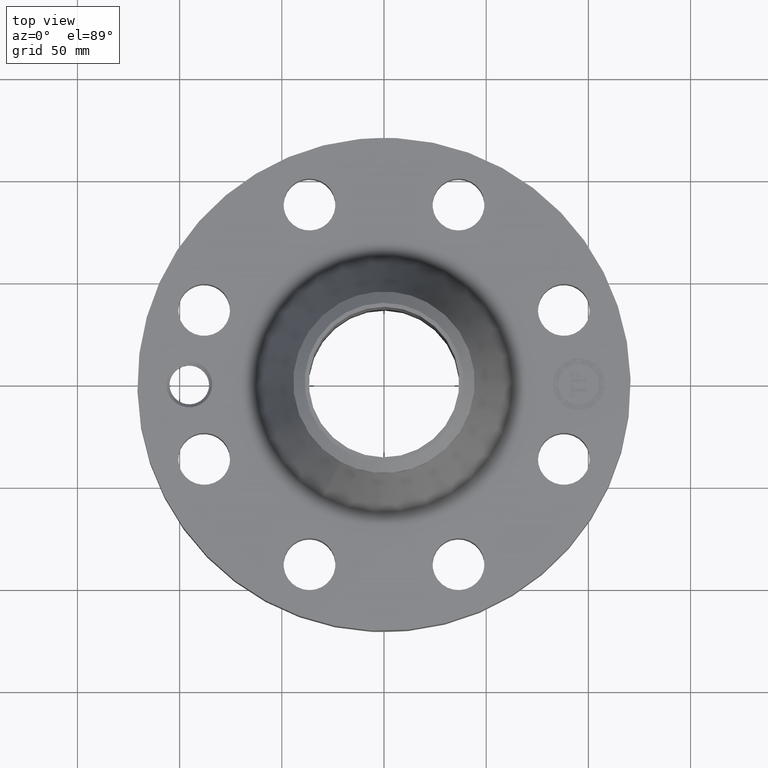
[diagram: clean part render]
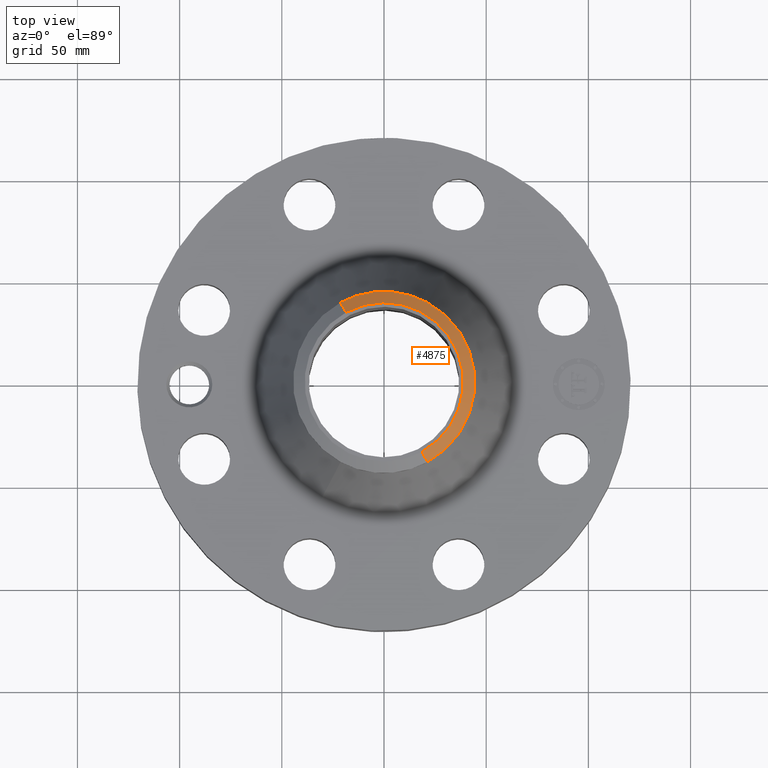
[diagram: same view with one face highlighted and labeled with its STEP entity id]
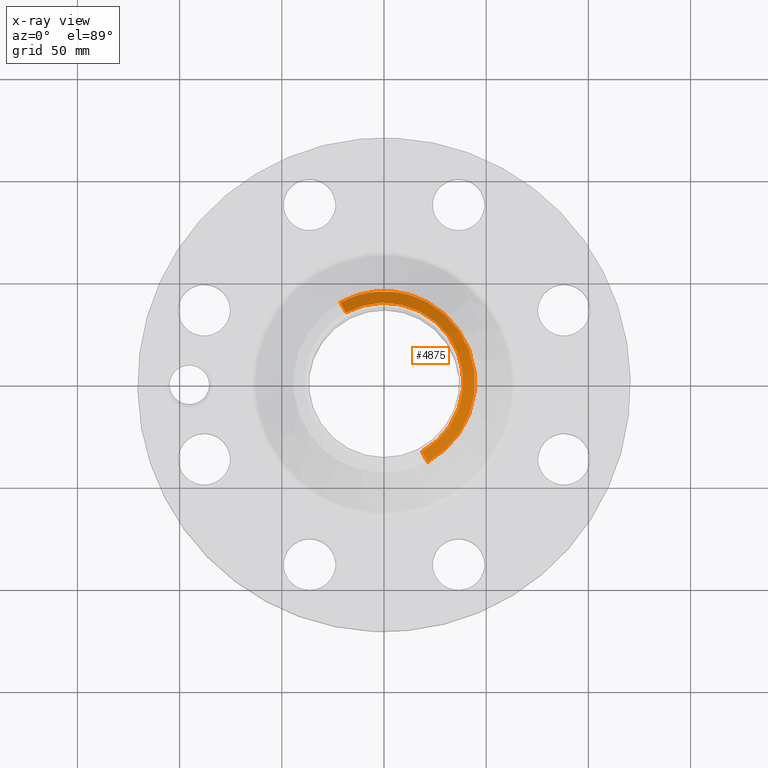
[diagram: x-ray of the same camera — body ghosted, the highlighted face saturated]
A machine part, top view. The second image highlights one B-rep face of the part: STEP entity #4875.
The next image is the same camera in x-ray: the body ghosted, the highlighted face saturated — about 0% of this face is hidden behind the body in this view.
In plain terms, the highlighted conical surface has half-angle 52.5 deg.
Its self-contained STEP definition (entity closure, byte-faithful):
#3550=AXIS2_PLACEMENT_3D('Circle Axis2P3D',#3548,#3549,$) ;
#3577=AXIS2_PLACEMENT_3D('Circle Axis2P3D',#3575,#3576,$) ;
#4427=AXIS2_PLACEMENT_3D('Circle Axis2P3D',#4425,#4426,$) ;
#4856=AXIS2_PLACEMENT_3D('Cone Axis2P3D',#4853,#4854,#4855) ;
#3545=CARTESIAN_POINT('Vertex',(0.838994692561,1.53576948331,4.08022135149)) ;
#3548=CARTESIAN_POINT('Axis2P3D Location',(0.,0.,4.08022135149)) ;
#3552=CARTESIAN_POINT('Vertex',(0.838994692561,-1.53576948331,4.08022135149)) ;
#3572=CARTESIAN_POINT('Vertex',(-0.838994692561,1.53576948331,4.08022135149)) ;
#3575=CARTESIAN_POINT('Axis2P3D Location',(0.,0.,4.08022135149)) ;
#4425=CARTESIAN_POINT('Axis2P3D Location',(0.,0.,4.25000000002)) ;
#4429=CARTESIAN_POINT('Vertex',(0.732917073389,-1.34159570387,4.25000000002)) ;
#4431=CARTESIAN_POINT('Vertex',(-0.732917073389,1.34159570387,4.25000000002)) ;
#4853=CARTESIAN_POINT('Axis2P3D Location',(0.,0.,4.25000000002)) ;
#4858=CARTESIAN_POINT('Line Origine',(-0.785955882975,1.43868259359,4.16511067576)) ;
#4863=CARTESIAN_POINT('Line Origine',(0.785955882975,-1.43868259359,4.16511067576)) ;
#3549=DIRECTION('Axis2P3D Direction',(0.,0.,-0.0393700787402)) ;
#3576=DIRECTION('Axis2P3D Direction',(0.,0.,-0.0393700787402)) ;
#4426=DIRECTION('Axis2P3D Direction',(0.,0.,-0.0393700787402)) ;
#4854=DIRECTION('Axis2P3D Direction',(-0.,-0.,-0.0393700787402)) ;
#4855=DIRECTION('Axis2P3D XDirection',(0.0188750212049,-0.0345504945626,0.)) ;
#4859=DIRECTION('Vector Direction',(-0.014974561121,0.02741075027,-0.023966985394)) ;
#4864=DIRECTION('Vector Direction',(0.014974561121,-0.02741075027,-0.023966985394)) ;
#4860=VECTOR('Line Direction',#4859,0.0393700787402) ;
#4865=VECTOR('Line Direction',#4864,0.0393700787402) ;
#4869=ORIENTED_EDGE('',*,*,#4862,.F.) ;
#4870=ORIENTED_EDGE('',*,*,#4433,.F.) ;
#4871=ORIENTED_EDGE('',*,*,#4867,.T.) ;
#4872=ORIENTED_EDGE('',*,*,#3554,.T.) ;
#4873=ORIENTED_EDGE('',*,*,#3579,.F.) ;
#4875=ADVANCED_FACE('PartBody',(#4874),#4857,.T.) ;
#3551=CIRCLE('generated circle',#3550,1.75000000001) ;
#3578=CIRCLE('generated circle',#3577,1.75000000001) ;
#4428=CIRCLE('generated circle',#4427,1.52874015749) ;
#4857=CONICAL_SURFACE('Cone',#4856,1.52874015749,0.916297857297) ;
#3554=EDGE_CURVE('',#3553,#3546,#3551,.F.) ;
#3579=EDGE_CURVE('',#3573,#3546,#3578,.T.) ;
#4433=EDGE_CURVE('',#4430,#4432,#4428,.F.) ;
#4862=EDGE_CURVE('',#4432,#3573,#4861,.T.) ;
#4867=EDGE_CURVE('',#4430,#3553,#4866,.T.) ;
#4868=EDGE_LOOP('',(#4869,#4870,#4871,#4872,#4873)) ;
#4874=FACE_OUTER_BOUND('',#4868,.T.) ;
#4861=LINE('Line',#4858,#4860) ;
#4866=LINE('Line',#4863,#4865) ;
#3546=VERTEX_POINT('',#3545) ;
#3553=VERTEX_POINT('',#3552) ;
#3573=VERTEX_POINT('',#3572) ;
#4430=VERTEX_POINT('',#4429) ;
#4432=VERTEX_POINT('',#4431) ;